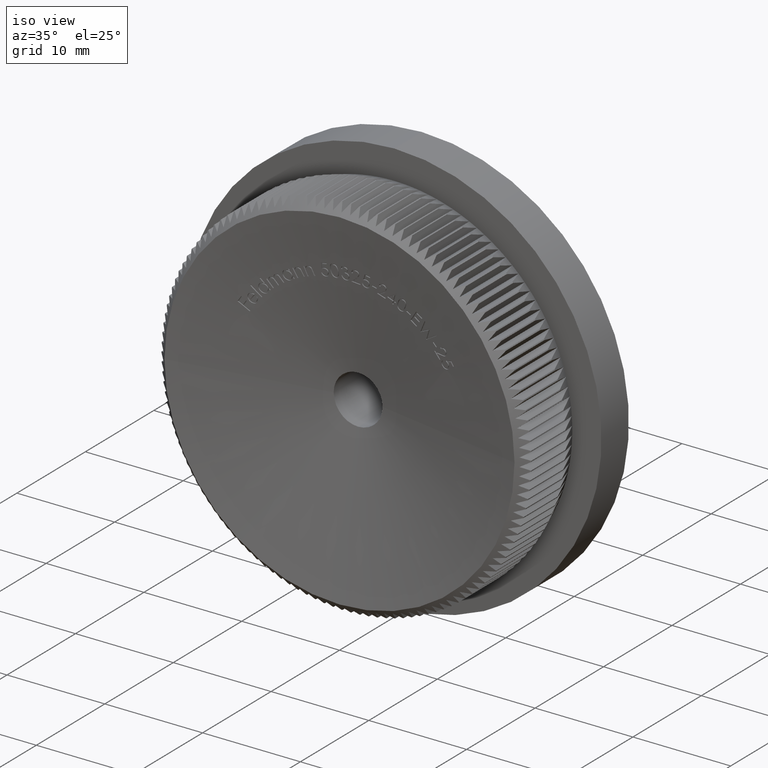
[diagram: clean part render]
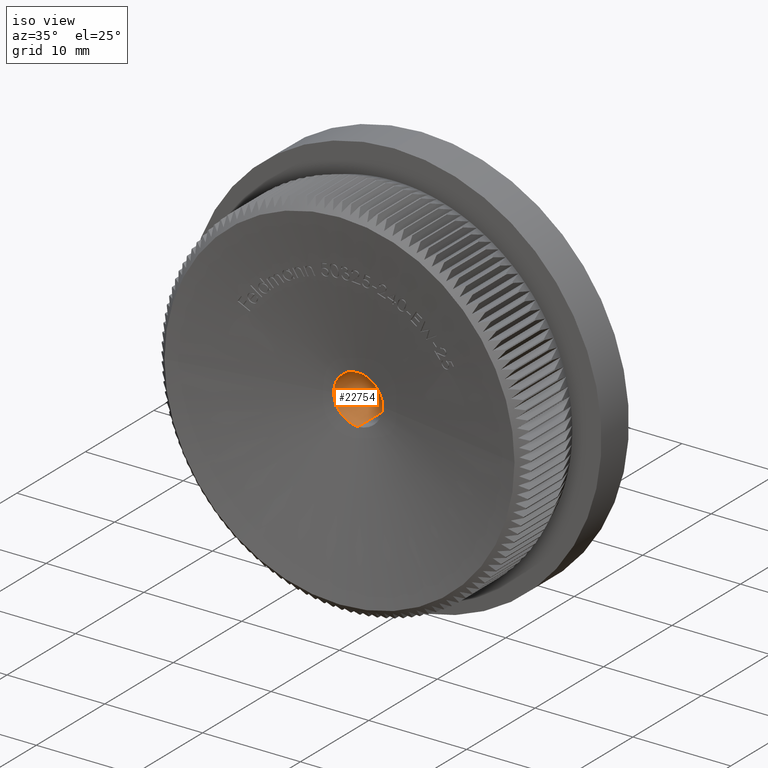
[diagram: same view with one face highlighted and labeled with its STEP entity id]
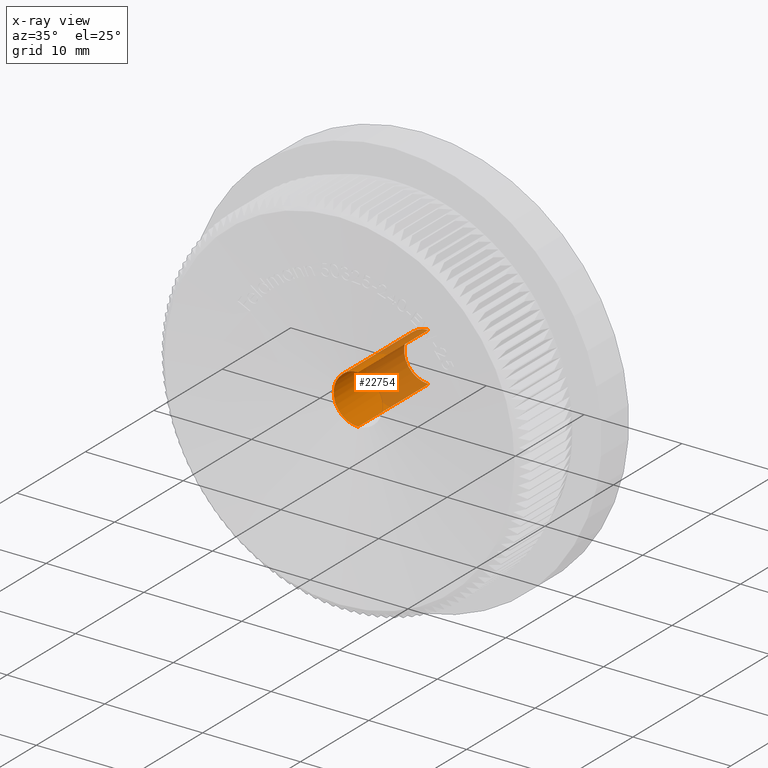
[diagram: x-ray of the same camera — body ghosted, the highlighted face saturated]
A machine part, iso view. The second image highlights one B-rep face of the part: STEP entity #22754.
The next image is the same camera in x-ray: the body ghosted, the highlighted face saturated — about 50% of this face is hidden behind the body in this view.
In plain terms, the highlighted cylindrical surface (edge-blend (fillet) strip) has radius 2.5 mm, axis along (-0, 1, -0).
Its self-contained STEP definition (entity closure, byte-faithful):
#61 = DIRECTION ( 'NONE',  ( 1.164011347856539600E-017, 1.000000000000000000, 0.0000000000000000000 ) ) ;
#119 = DIRECTION ( 'NONE',  ( 1.164011347856539600E-017, 1.000000000000000000, 0.0000000000000000000 ) ) ;
#709 = AXIS2_PLACEMENT_3D ( 'NONE', #22893, #61, #28128 ) ;
#2046 = DIRECTION ( 'NONE',  ( -0.0000000000000000000, 1.000000000000000000, -0.0000000000000000000 ) ) ;
#2281 = DIRECTION ( 'NONE',  ( 1.000000000000000000, 0.0000000000000000000, 0.0000000000000000000 ) ) ;
#2479 = CARTESIAN_POINT ( 'NONE',  ( 3.160797739760058900E-017, 2.715435502910248400, 0.0000000000000000000 ) ) ;
#2844 = CARTESIAN_POINT ( 'NONE',  ( 3.061616997868382600E-016, 13.00000000000000000, -2.500000000000000000 ) ) ;
#2893 = FACE_OUTER_BOUND ( 'NONE', #7832, .T. ) ;
#4333 = EDGE_CURVE ( 'NONE', #26342, #22950, #24288, .T. ) ;
#4418 = AXIS2_PLACEMENT_3D ( 'NONE', #19606, #26928, #21996 ) ;
#4799 = LINE ( 'NONE', #25308, #12946 ) ;
#7336 = VERTEX_POINT ( 'NONE', #21290 ) ;
#7832 = EDGE_LOOP ( 'NONE', ( #26202, #11027, #12284, #20436, #28595 ) ) ;
#7935 = VERTEX_POINT ( 'NONE', #17882 ) ;
#9271 = EDGE_CURVE ( 'NONE', #24717, #26342, #26020, .T. ) ;
#11027 = ORIENTED_EDGE ( 'NONE', *, *, #9271, .T. ) ;
#11575 = CIRCLE ( 'NONE', #20909, 2.500000000000000000 ) ;
#12284 = ORIENTED_EDGE ( 'NONE', *, *, #4333, .T. ) ;
#12946 = VECTOR ( 'NONE', #2046, 1000.000000000000000 ) ;
#13397 = DIRECTION ( 'NONE',  ( 0.0000000000000000000, 1.000000000000000000, 0.0000000000000000000 ) ) ;
#13861 = EDGE_CURVE ( 'NONE', #7336, #22950, #4799, .T. ) ;
#13895 = CARTESIAN_POINT ( 'NONE',  ( 0.0000000000000000000, 13.00000000000000000, 2.500000000000000000 ) ) ;
#14334 = CYLINDRICAL_SURFACE ( 'NONE', #4418, 2.500000000000000000 ) ;
#17790 = AXIS2_PLACEMENT_3D ( 'NONE', #18120, #13397, #25295 ) ;
#17882 = CARTESIAN_POINT ( 'NONE',  ( -2.500000000000000000, 2.715435502910248400, 1.249139735130300000E-015 ) ) ;
#18120 = CARTESIAN_POINT ( 'NONE',  ( 0.0000000000000000000, 13.00000000000000000, 0.0000000000000000000 ) ) ;
#18374 = CARTESIAN_POINT ( 'NONE',  ( 3.061616997868383100E-016, 2.715435502910248400, -2.500000000000000000 ) ) ;
#19606 = CARTESIAN_POINT ( 'NONE',  ( 0.0000000000000000000, 0.0000000000000000000, 0.0000000000000000000 ) ) ;
#20171 = CIRCLE ( 'NONE', #709, 2.500000000000000000 ) ;
#20436 = ORIENTED_EDGE ( 'NONE', *, *, #13861, .F. ) ;
#20909 = AXIS2_PLACEMENT_3D ( 'NONE', #2479, #119, #2281 ) ;
#21290 = CARTESIAN_POINT ( 'NONE',  ( 0.0000000000000000000, 2.715435502910248400, 2.500000000000000000 ) ) ;
#21584 = VECTOR ( 'NONE', #23156, 1000.000000000000000 ) ;
#21996 = DIRECTION ( 'NONE',  ( 0.0000000000000000000, 0.0000000000000000000, 1.000000000000000000 ) ) ;
#22754 = ADVANCED_FACE ( 'NONE', ( #2893 ), #14334, .F. ) ;
#22893 = CARTESIAN_POINT ( 'NONE',  ( 3.160797739760058900E-017, 2.715435502910248400, 0.0000000000000000000 ) ) ;
#22950 = VERTEX_POINT ( 'NONE', #13895 ) ;
#23156 = DIRECTION ( 'NONE',  ( -0.0000000000000000000, 1.000000000000000000, -0.0000000000000000000 ) ) ;
#24288 = CIRCLE ( 'NONE', #17790, 2.500000000000000000 ) ;
#24717 = VERTEX_POINT ( 'NONE', #18374 ) ;
#25295 = DIRECTION ( 'NONE',  ( 0.0000000000000000000, 0.0000000000000000000, 1.000000000000000000 ) ) ;
#25308 = CARTESIAN_POINT ( 'NONE',  ( 0.0000000000000000000, 0.0000000000000000000, 2.500000000000000000 ) ) ;
#26020 = LINE ( 'NONE', #29838, #21584 ) ;
#26202 = ORIENTED_EDGE ( 'NONE', *, *, #26847, .F. ) ;
#26342 = VERTEX_POINT ( 'NONE', #2844 ) ;
#26847 = EDGE_CURVE ( 'NONE', #24717, #7935, #20171, .T. ) ;
#26928 = DIRECTION ( 'NONE',  ( -0.0000000000000000000, 1.000000000000000000, -0.0000000000000000000 ) ) ;
#28128 = DIRECTION ( 'NONE',  ( 1.000000000000000000, 0.0000000000000000000, 0.0000000000000000000 ) ) ;
#28595 = ORIENTED_EDGE ( 'NONE', *, *, #29627, .F. ) ;
#29627 = EDGE_CURVE ( 'NONE', #7935, #7336, #11575, .T. ) ;
#29838 = CARTESIAN_POINT ( 'NONE',  ( 3.061616997868382600E-016, 0.0000000000000000000, -2.500000000000000000 ) ) ;